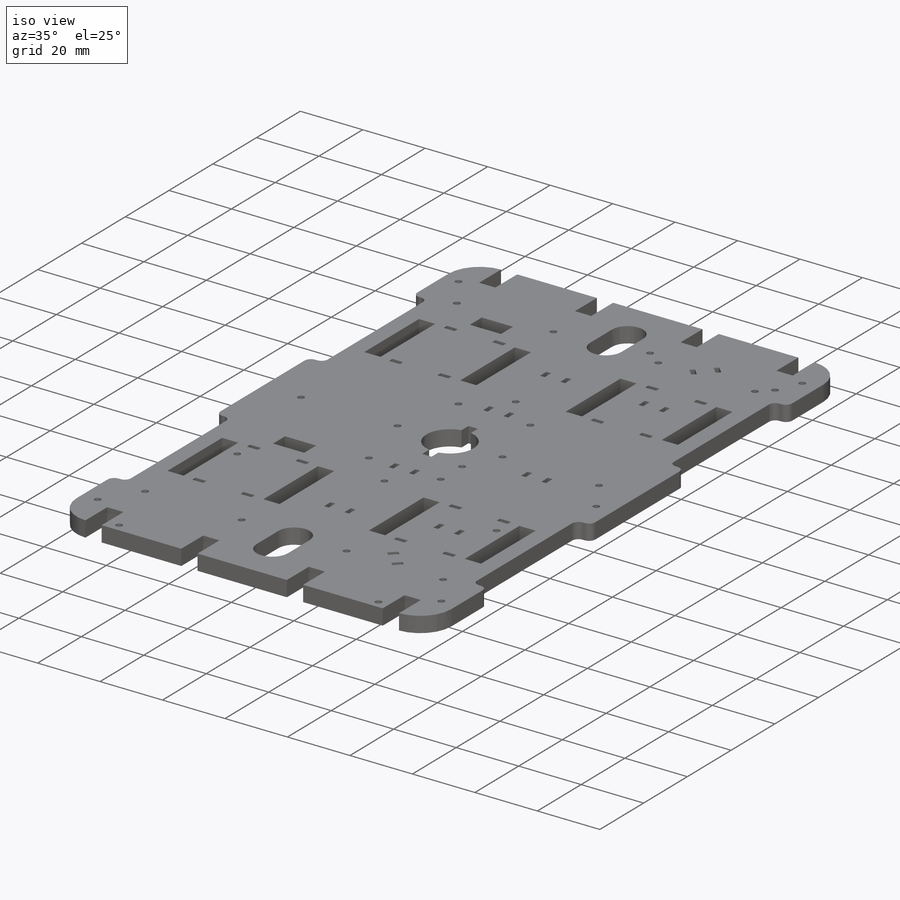
[diagram: iso view]
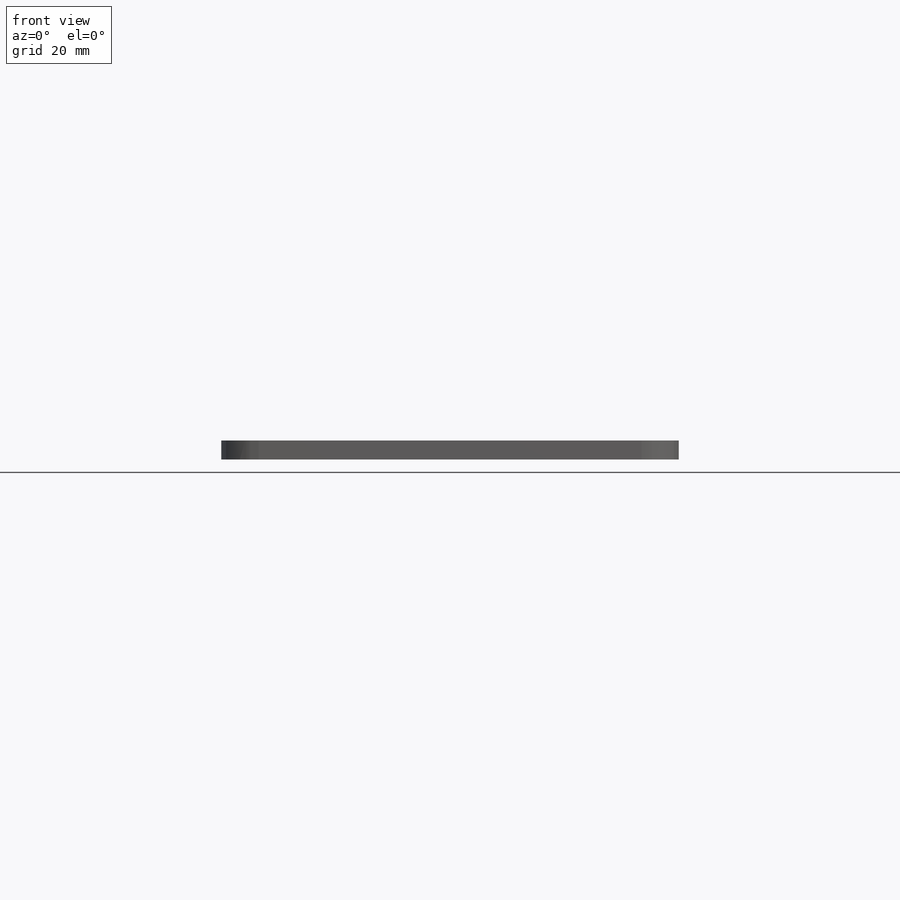
[diagram: front view]
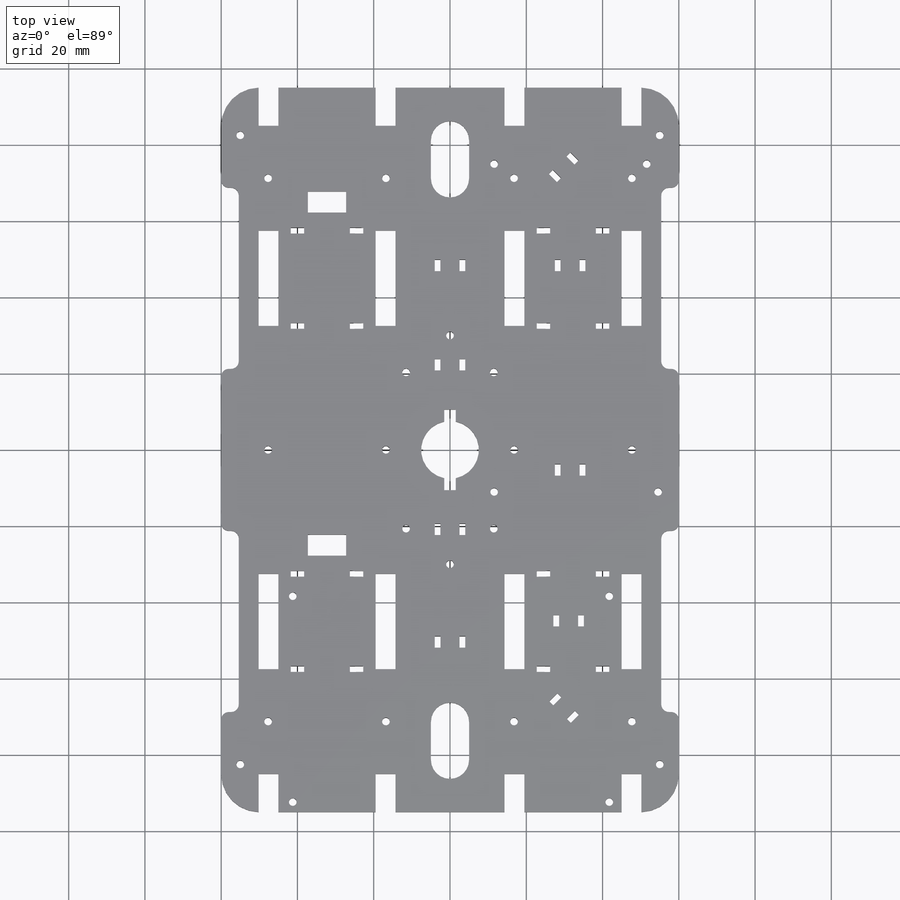
[diagram: top view]
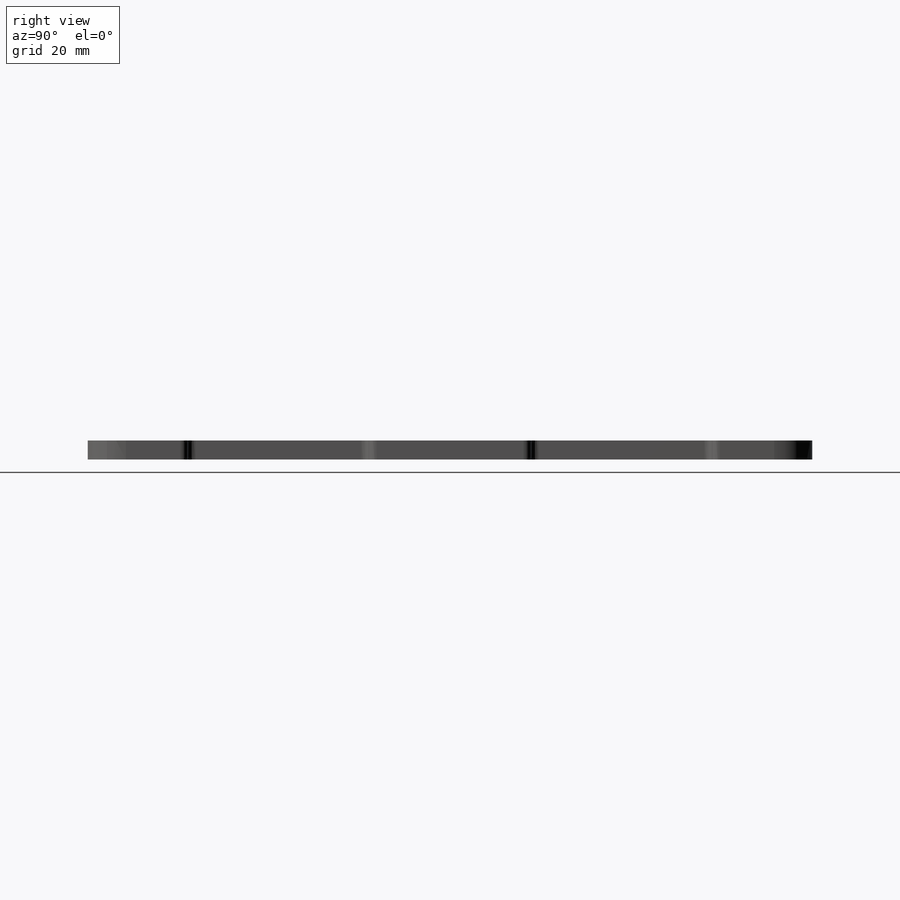
[diagram: right view]
SOLIDWORKS PART (.sldprt)
format: sldprt  version: not decoded by parser v0  size: 790,016 bytes
history: native  units: mm
features: sketch x12, cut_extrude x11, extrude x5, plane x3, fillet x2, material x1 (+9 scaffold rows collapsed)
feature tree (43):
  scaffold x9  (default folders/planes/origin — collapsed)
  material  "Acrílico (médio-alto impacto)"
  plane  "Plano frontal"
  plane  "Plano superior"
  plane  "Plano direito"
  sketch  "Esboço1"  dims[D1=120.0mm D2=190.0mm]
  extrude  "Ressalto-extrusão1"  Depth=5mm
  sketch  "Esboço2"  dims[c1.D1=5.2mm c1.D2=5.2mm c1.D3=5.2mm c1.D4=5.2mm c2.D1=25.5mm]
  cut_extrude  "Corte-extrusão1"  [1 undecoded]
  sketch  "Esboço3"  dims[D1=2.0mm D3=2.0mm D4=2.0mm D2=1.0mm]
  cut_extrude  "Corte-extrusão2"  [1 undecoded]
  sketch  "Esboço4"
  extrude  "Bloco1"  Depth=3.5mm
  extrude  "Bloco2"  Depth=1mm
  cut_extrude  "Corte-extrusão3"  [1 undecoded]
  fillet  "Filete1"  Radius=10mm
  fillet  "Filete2"  Radius=2mm
  sketch  "Esboço5"
  extrude  "Bloco3"  Depth=10mm
  cut_extrude  "Corte-extrusão4"  Depth=10mm
  sketch  "Esboço7"  dims[c1.D1=82.5mm c1.D2=10.0mm c2.D1=110.0mm c2.D2=82.5mm c3.D1=165.0mm]
  cut_extrude  "Corte-extrusão5"  [1 undecoded]
  sketch  "Esboço8"  dims[c1.D1=5.5mm c1.D2=10.0mm c1.D3=75.0mm c1.D4=10.0mm c2.D4=~28.810794deg c3.D4=~44.986284mm]
  cut_extrude  "Corte-extrusão6"  [1 undecoded]
  sketch  "Esboço9"  dims[D1=2.0mm D2=30.0mm]
  cut_extrude  "Corte-extrusão7"  [1 undecoded]
  sketch  "Esboço10"
  cut_extrude  "Corte-extrusão8"  [1 undecoded]
  sketch  "Esboço12"  dims[D1=2.0mm]
  cut_extrude  "Corte-extrusão9"  [1 undecoded]
  sketch  "Esboço13"  dims[D1=2.0mm]
  cut_extrude  "Corte-extrusão10"  [1 undecoded]
  sketch  "Esboço15"
  extrude  "Bloco6"  [1 undecoded]
  cut_extrude  "Corte-extrusão11"  [1 undecoded]
decode coverage: 15 of 30 modeling features carry decoded parameters
note: ~ marks probable driven/reference dimensions
note: 11 parameter values undecoded
summary: no parameter record found for 11 features
note: suppression state not decoded; provenance and decode notes live in map.json
